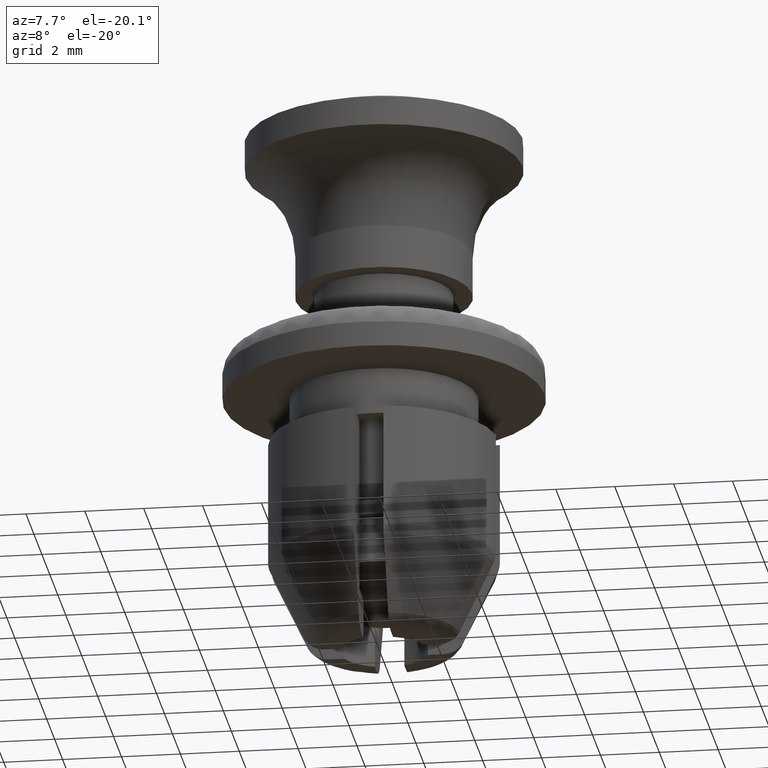
[diagram: clean part render]
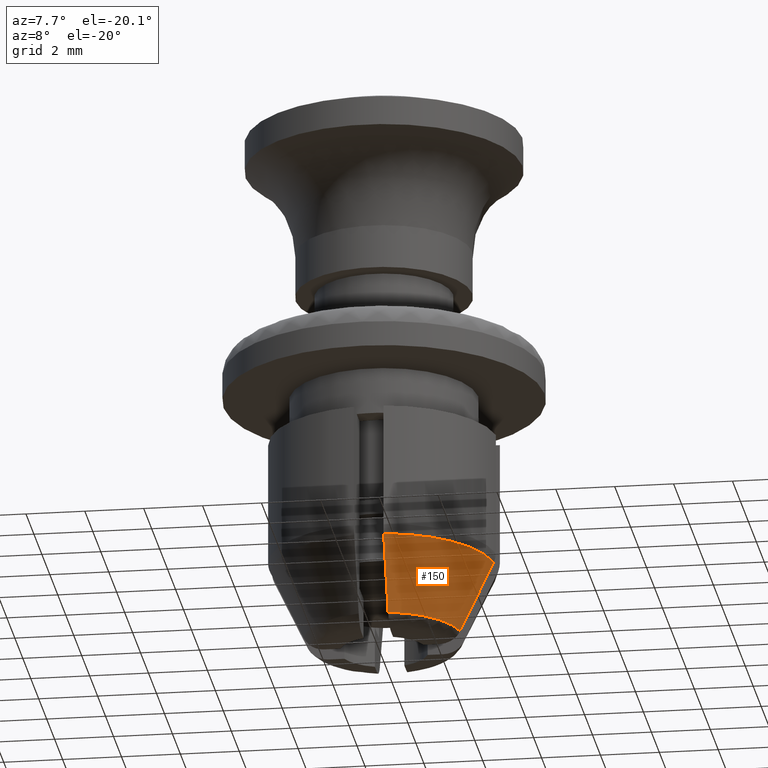
[diagram: same view with one face highlighted and labeled with its STEP entity id]
A machine part, auxiliary view. The second image highlights one B-rep face of the part: STEP entity #150.
In plain terms, the highlighted face is a freeform B-spline surface patch.
Its self-contained STEP definition (entity closure, byte-faithful):
#150=ADVANCED_FACE('',(#575),#574,.T.);
#574=( BOUNDED_SURFACE() B_SPLINE_SURFACE( 2,1,((#1242,#1243),(#1244,#1245),(#1246,#1247)), .UNSPECIFIED.,.F.,.F.,.F.) B_SPLINE_SURFACE_WITH_KNOTS((3,3),(2,2),(0.00000000000E+00,1.00000000000E+00),(0.00000000000E+00,1.00000000000E+00), .UNSPECIFIED. ) GEOMETRIC_REPRESENTATION_ITEM() RATIONAL_B_SPLINE_SURFACE(((1.00000000000E+00,1.00000000000E+00),(7.93400170828E-01,7.93400170828E-01),(1.00000000000E+00,1.00000000000E+00))) REPRESENTATION_ITEM('') SURFACE() );
#575=FACE_OUTER_BOUND('',#1248,.T.);
#1242=CARTESIAN_POINT('',(3.52858377744E-01,-2.67863283419E+00,-1.05678842499E+01));
#1243=CARTESIAN_POINT('',(4.99490908911E-01,-3.79175565433E+00,-8.16190055103E+00));
#1244=CARTESIAN_POINT('',(2.40791825788E+00,-2.40791820462E+00,-1.05678842499E+01));
#1245=CARTESIAN_POINT('',(3.40854392320E+00,-3.40854384781E+00,-8.16190055103E+00));
#1246=CARTESIAN_POINT('',(2.67863284200E+00,-3.52858318499E-01,-1.05678842499E+01));
#1247=CARTESIAN_POINT('',(3.79175566538E+00,-4.99490825046E-01,-8.16190055103E+00));
#1248=EDGE_LOOP('',(#1792,#1793,#1794,#1795));
#1792=ORIENTED_EDGE('',*,*,#2122,.F.);
#1793=ORIENTED_EDGE('',*,*,#2127,.T.);
#1794=ORIENTED_EDGE('',*,*,#2070,.T.);
#1795=ORIENTED_EDGE('',*,*,#2046,.T.);
#2046=EDGE_CURVE('',#2530,#2523,#2531,.T.);
#2070=EDGE_CURVE('',#2688,#2530,#2689,.T.);
#2122=EDGE_CURVE('',#3021,#2523,#3028,.T.);
#2127=EDGE_CURVE('',#3021,#2688,#3060,.T.);
#2523=VERTEX_POINT('',#3714);
#2530=VERTEX_POINT('',#3721);
#2531=(BOUNDED_CURVE() B_SPLINE_CURVE(3,(#3722,#3723,#3724,#3725),.UNSPECIFIED.,.F.,.F.) B_SPLINE_CURVE_WITH_KNOTS((4,4),(3.02675948293E-03,5.68662966127E-03),.UNSPECIFIED.) CURVE() GEOMETRIC_REPRESENTATION_ITEM() RATIONAL_B_SPLINE_CURVE((1.00000000000E+00,1.00000000000E+00,1.00000000000E+00,1.00000000000E+00)) REPRESENTATION_ITEM('') );
#2688=VERTEX_POINT('',#3825);
#2689=CIRCLE('',#3829,3.82428734418E+00);
#3021=VERTEX_POINT('',#4047);
#3028=CIRCLE('',#4057,2.70200000000E+00);
#3060=(BOUNDED_CURVE() B_SPLINE_CURVE(3,(#4076,#4077,#4078,#4079),.UNSPECIFIED.,.F.,.F.) B_SPLINE_CURVE_WITH_KNOTS((4,4),(3.64126434805E-03,6.30103888672E-03),.UNSPECIFIED.) CURVE() GEOMETRIC_REPRESENTATION_ITEM() RATIONAL_B_SPLINE_CURVE((1.00000000000E+00,1.00000000000E+00,1.00000000000E+00,1.00000000000E+00)) REPRESENTATION_ITEM('') );
#3714=CARTESIAN_POINT('',(5.00000000000E-01,-2.65533500711E+00,-1.05674000000E+01));
#3721=CARTESIAN_POINT('',(5.00000000000E-01,-3.79146062763E+00,-8.16238480092E+00));
#3722=CARTESIAN_POINT('',(5.00000000000E-01,-3.79146062763E+00,-8.16238480092E+00));
#3723=CARTESIAN_POINT('',(5.00000000000E-01,-3.41387554992E+00,-8.96458841921E+00));
#3724=CARTESIAN_POINT('',(5.00000000000E-01,-3.03564167719E+00,-9.76649375746E+00));
#3725=CARTESIAN_POINT('',(5.00000000000E-01,-2.65533500711E+00,-1.05674000000E+01));
#3825=CARTESIAN_POINT('',(3.79146062764E+00,-5.00000000000E-01,-8.16238480092E+00));
#3826=CARTESIAN_POINT('',(0.00000000000E+00,0.00000000000E+00,-8.16238480092E+00));
#3827=DIRECTION('',(0.00000000000E+00,0.00000000000E+00,-1.00000000000E+00));
#3828=DIRECTION('',(1.00000000000E+00,-0.00000000000E+00,-0.00000000000E+00));
#3829=AXIS2_PLACEMENT_3D('',#3826,#3827,#3828);
#4047=CARTESIAN_POINT('',(2.65533500711E+00,-5.00000000000E-01,-1.05674000000E+01));
#4054=CARTESIAN_POINT('',(0.00000000000E+00,0.00000000000E+00,-1.05674000000E+01));
#4055=DIRECTION('',(0.00000000000E+00,0.00000000000E+00,-1.00000000000E+00));
#4056=DIRECTION('',(1.00000000000E+00,-0.00000000000E+00,-0.00000000000E+00));
#4057=AXIS2_PLACEMENT_3D('',#4054,#4055,#4056);
#4076=CARTESIAN_POINT('',(2.65533500711E+00,-5.00000000000E-01,-1.05674000000E+01));
#4077=CARTESIAN_POINT('',(3.03564503778E+00,-5.00000000000E-01,-9.76648668025E+00));
#4078=CARTESIAN_POINT('',(3.41387641556E+00,-5.00000000000E-01,-8.96458658010E+00));
#4079=CARTESIAN_POINT('',(3.79146062763E+00,-5.00000000000E-01,-8.16238480092E+00));